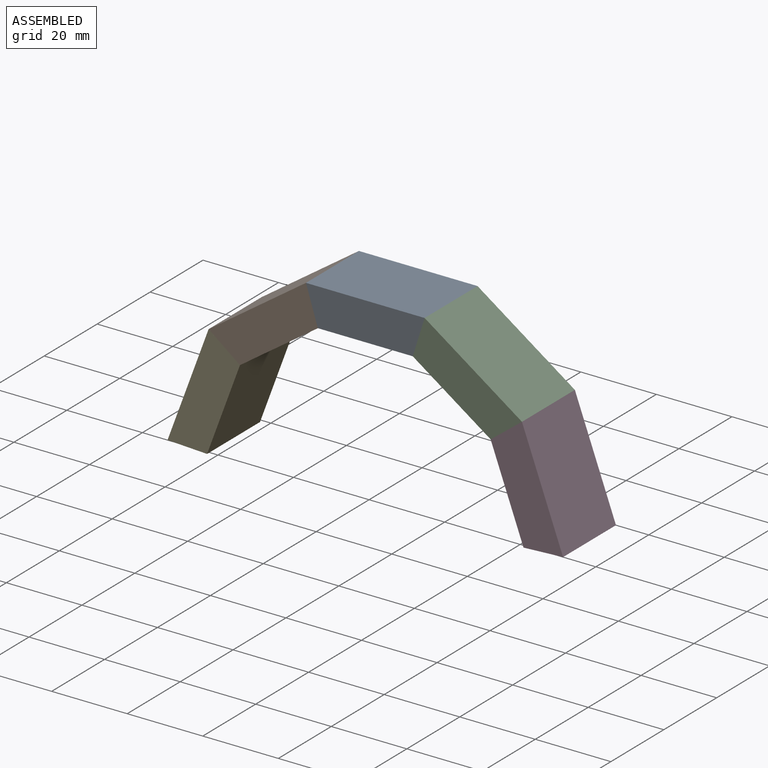
[diagram: assembled view]
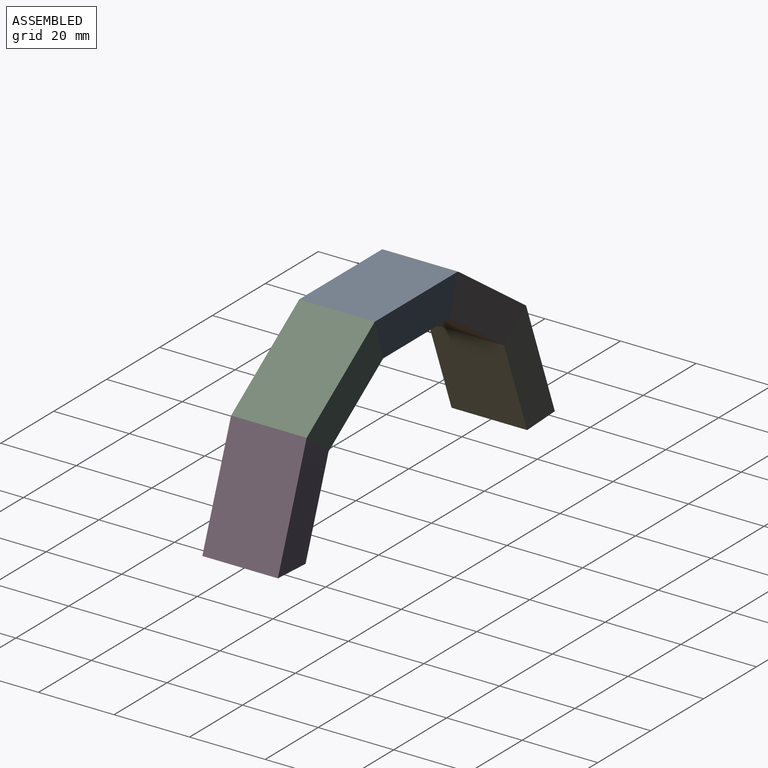
[diagram: assembled view, second angle]
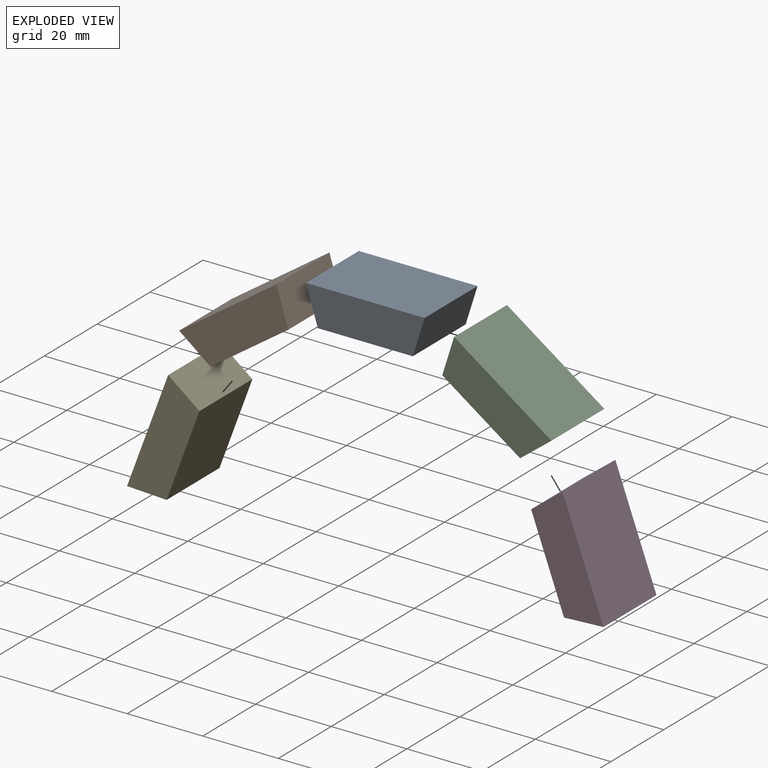
[diagram: exploded view]
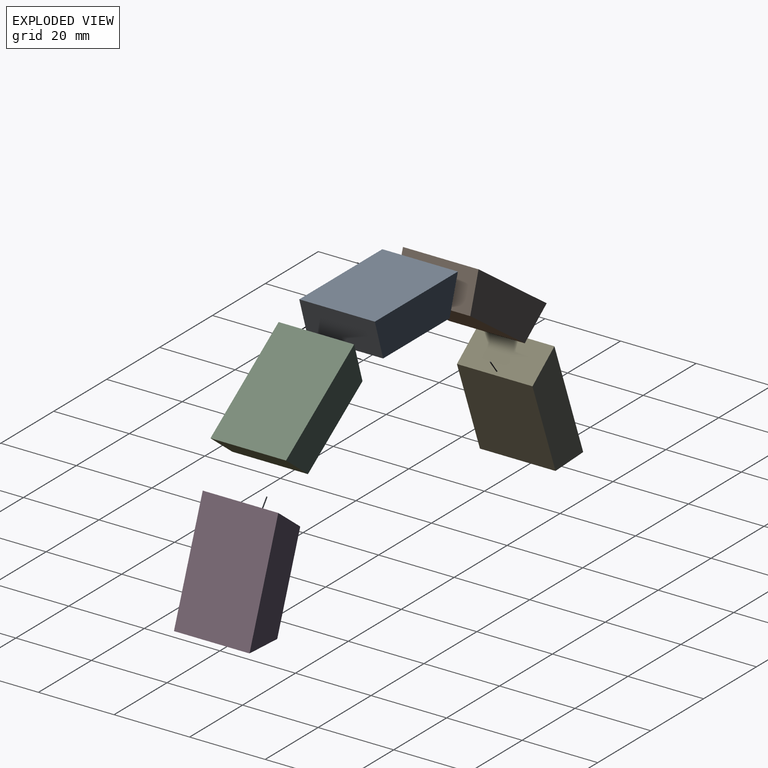
[diagram: exploded view, second angle]
ASSEMBLY  parts=5 mates=4
PART A: 6 faces, bbox 31.4x20x10 mm
  f0: plane 25.12x20mm, normal (0,0,-1), area 502.4mm2, adj f1,f3,f4,f5
  f1: plane 20x10mm, normal (0.95,0,-0.3), area 209.6mm2, adj f0,f2,f4,f5
  f2: plane 31.4x20mm, normal (0,0,1), area 628mm2, adj f1,f3,f4,f5
  f3: plane 20x10mm, normal (-0.95,0,-0.3), area 209.6mm2, adj f0,f2,f4,f5
  f4: plane 31.4x10mm, normal (0,-1,0), area 282.6mm2, adj f0,f1,f2,f3
  f5: plane 31.4x10mm, normal (0,1,0), area 282.6mm2, adj f0,f1,f2,f3
PART B: same geometry as A
PART C: same geometry as A
PART D: same geometry as A
PART E: same geometry as A
PLACE A at identity
PLACE B rot(axis=(0,-1,0),34.9deg) t=(-25.72,0,-8.08)mm
PLACE C rot(axis=(0,1,0),34.9deg) t=(25.72,0,-8.08)mm
PLACE D rot(axis=(0,1,0),69.7deg) t=(42.21,0,-29.41)mm
PLACE E rot(axis=(0,-1,0),69.7deg) t=(-42.21,0,-29.41)mm
MATE fastened D.f3 <-> C.f1  axis (-0.61,0,0.79) through (37.32,0,-16.15)mm
MATE fastened C.f3 <-> A.f1  axis (-0.95,0,0.3) through (14.13,0,0)mm
MATE fastened E.f1 <-> B.f3  axis (0.61,0,0.79) through (-37.32,0,-16.15)mm
MATE fastened B.f1 <-> A.f3  axis (0.95,0,0.3) through (-14.13,0,0)mm
